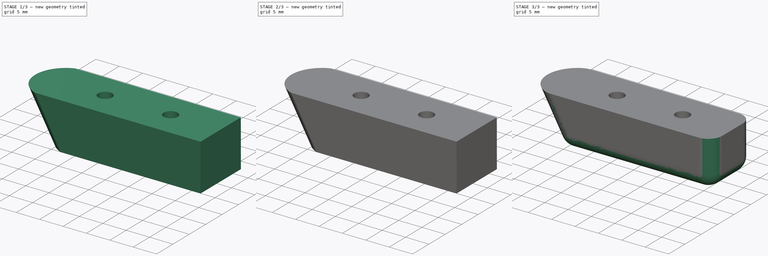
[diagram: build sequence overview — one tinted view per stage of 3, left to right]
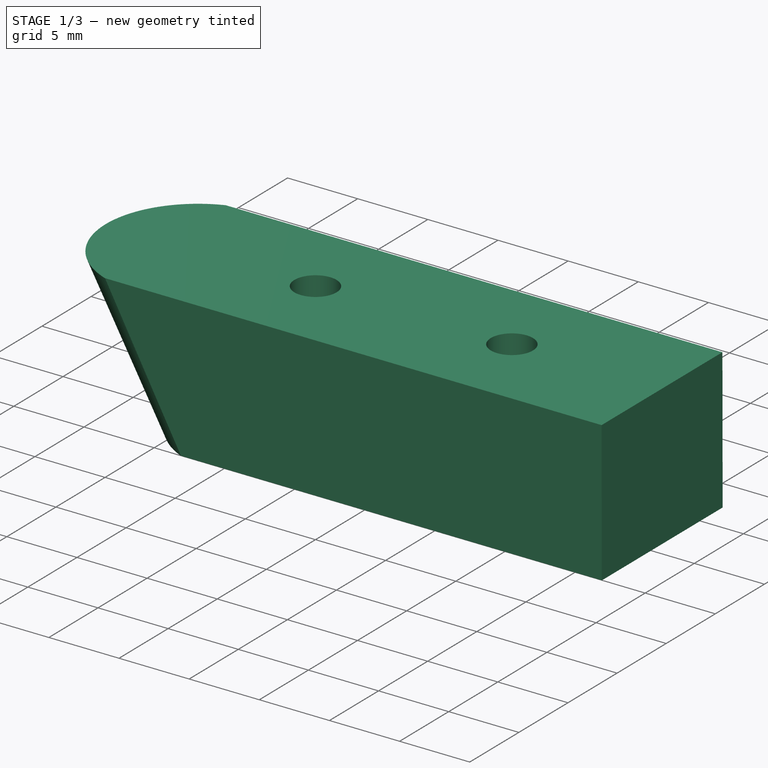
[diagram: stage 1 of 3 — iso view after this stage's code; geometry added in this stage tinted green]
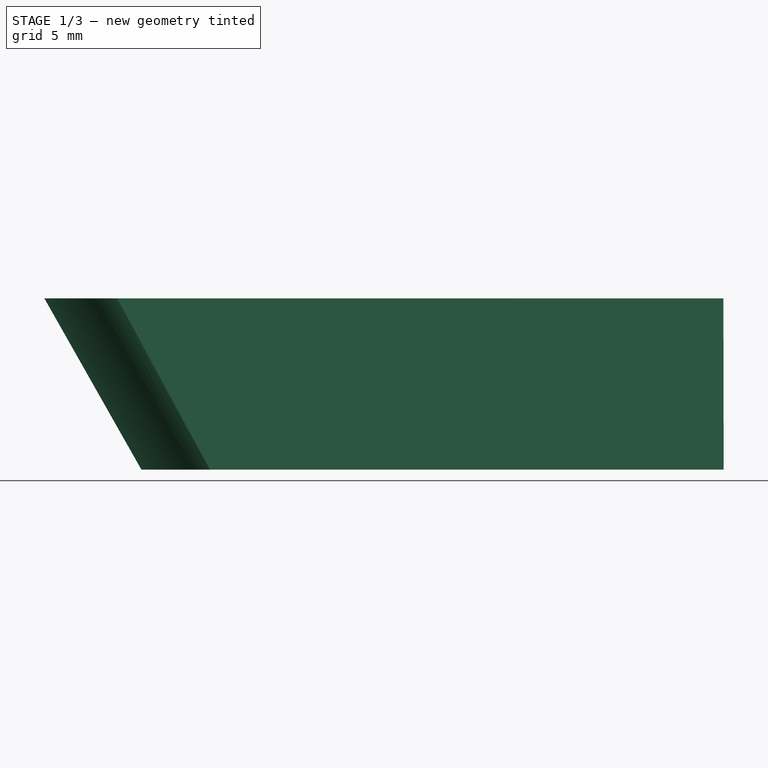
[diagram: stage 1 of 3 — front view after this stage's code; geometry added in this stage tinted green]
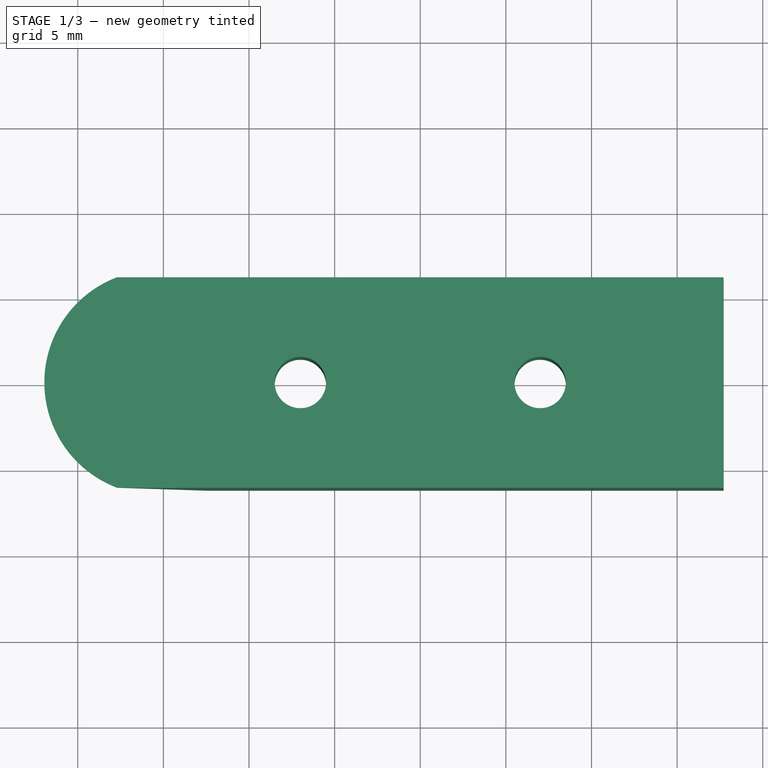
[diagram: stage 1 of 3 — top view after this stage's code; geometry added in this stage tinted green]
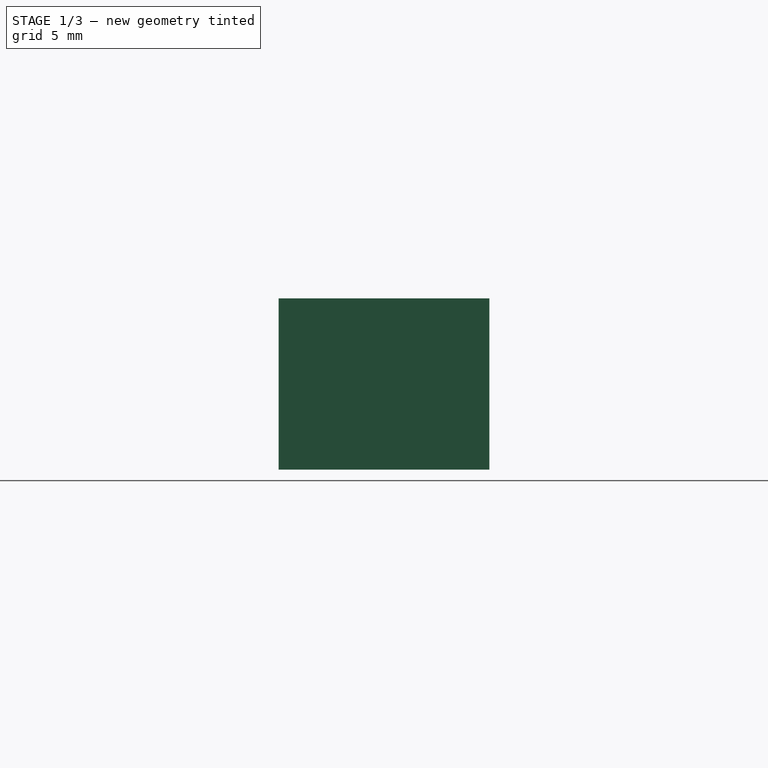
[diagram: stage 1 of 3 — right view after this stage's code; geometry added in this stage tinted green]
FCSTD DOCUMENT  (FreeCAD 0.16R6700 (Git))
Label: Magazine Bumper Pad 10mm
License: FreeArt
LicenseURL: http://artlibre.org/licence/lal
objects: Sketcher::SketchObject×4, PartDesign::Pocket×2, PartDesign::Fillet×2, Part::Loft×1
note: 11 computed .brp shape members not serialized (recipe doc carries the construction recipe); baked Part::Feature solids carry a one-line shape summary decoded from their .brp

FEATURE [Sketcher::SketchObject] Sketch
  sketch-geometry (6):
    g0: LineSegment StartX=-17.7 StartY=6.15 StartZ=0 EndX=17.7 EndY=6.15 EndZ=0
    g1: LineSegment StartX=17.7 StartY=6.15 StartZ=0 EndX=17.7 EndY=-6.15 EndZ=0
    g2: LineSegment StartX=17.7 StartY=-6.15 StartZ=0 EndX=-17.7 EndY=-6.15 EndZ=0
    g3: LineSegment [constr] StartX=-17.7 StartY=6.15 StartZ=0 EndX=-17.7 EndY=-6.15 EndZ=0
    g4: LineSegment [constr] StartX=17.7 StartY=0 StartZ=0 EndX=-21.95 EndY=0 EndZ=0
    g5: ArcOfCircle CenterX=-15.3753 CenterY=0 CenterZ=0 NormalX=0 NormalY=0 NormalZ=1 Radius=6.57471 StartAngle=1.9322 EndAngle=4.35099
  constraints (19):
    c: Horizontal(g0)
    c: Coincident(g0,g1)
    c: Vertical(g1)
    c: Coincident(g1,g2)
    c: Horizontal(g2)
    c: DistanceY(g1,g1) = 12.3
    c: Equal(g0,g2)
    c: DistanceX(g0,g0) = 35.4
    c: Coincident(g3,g0)
    c: Coincident(g3,g2)
    c: Symmetric(g0,g1,g-1)
    c: Symmetric(g0,g0,g-2)
    c: PointOnObject(g4,g1)
    c: Horizontal(g4)
    c: PointOnObject(g4,g-1)
    c: Distance(g4) = 39.65
    c: Coincident(g5,g0)
    c: Coincident(g5,g2)
    c: PointOnObject(g4,g5)
FEATURE [Sketcher::SketchObject] Sketch001
  Placement = pos=(0,0,-10) rot=(0,0,1;0rad)
  sketch-geometry (6):
    g0: LineSegment StartX=-12.2848 StartY=-6.15 StartZ=0 EndX=17.7152 EndY=-6.15 EndZ=0
    g1: LineSegment StartX=17.7152 StartY=-6.15 StartZ=0 EndX=17.7152 EndY=6.15 EndZ=0
    g2: LineSegment StartX=17.7152 StartY=6.15 StartZ=0 EndX=-12.2848 EndY=6.15 EndZ=0
    g3: GeomPoint [constr] X=17.7152 Y=0 Z=0
    g4: LineSegment [constr] StartX=-16.2848 StartY=0 StartZ=0 EndX=17.7152 EndY=0 EndZ=0
    g5: ArcOfCircle CenterX=-9.55699 CenterY=0 CenterZ=0 NormalX=0 NormalY=0 NormalZ=1 Radius=6.72781 StartAngle=1.98827 EndAngle=4.29491
  constraints (18):
    c: Horizontal(g0)
    c: Coincident(g0,g1)
    c: Vertical(g1)
    c: Coincident(g1,g2)
    c: Horizontal(g2)
    c: Symmetric(g1,g0,g-1)
    c: PointOnObject(g3,g-1)
    c: DistanceX(g-2,g3) = 17.7152
    c: PointOnObject(g3,g1)
    c: DistanceY(g1,g1) = 12.3
    c: Equal(g0,g2)
    c: DistanceX(g0,g0) = 30
    c: PointOnObject(g4,g-1)
    c: Coincident(g4,g3)
    c: DistanceX(g4,g4) = 34
    c: Coincident(g5,g0)
    c: Coincident(g5,g2)
    c: PointOnObject(g4,g5)
FEATURE [Part::Loft] Loft  label="Solido"
  Closed = false
  Ruled = true
  Sections = -> [Sketch,Sketch001]
  Solid = true
FEATURE [Sketcher::SketchObject] Sketch002
  Placement = pos=(0,0,-10) rot=(1,0,0;3.14159rad)
  Support = -> Loft [Face6]
  sketch-geometry (2):
    g0: Circle CenterX=-7 CenterY=0 CenterZ=0 NormalX=0 NormalY=0 NormalZ=1 Radius=1.5
    g1: Circle CenterX=7 CenterY=0 CenterZ=0 NormalX=0 NormalY=0 NormalZ=1 Radius=1.5
  constraints (6):
    c: PointOnObject(g0,g-1)
    c: PointOnObject(g1,g-1)
    c: Radius(g0) = 1.5
    c: Radius(g1) = 1.5
    c: Symmetric(g0,g1,g-2)
    c: DistanceX(g-1,g1) = 7
FEATURE [PartDesign::Pocket] Pocket  label="Furos Parafusos"
  Length = 5
  Sketch = -> Sketch002
  Type = 1
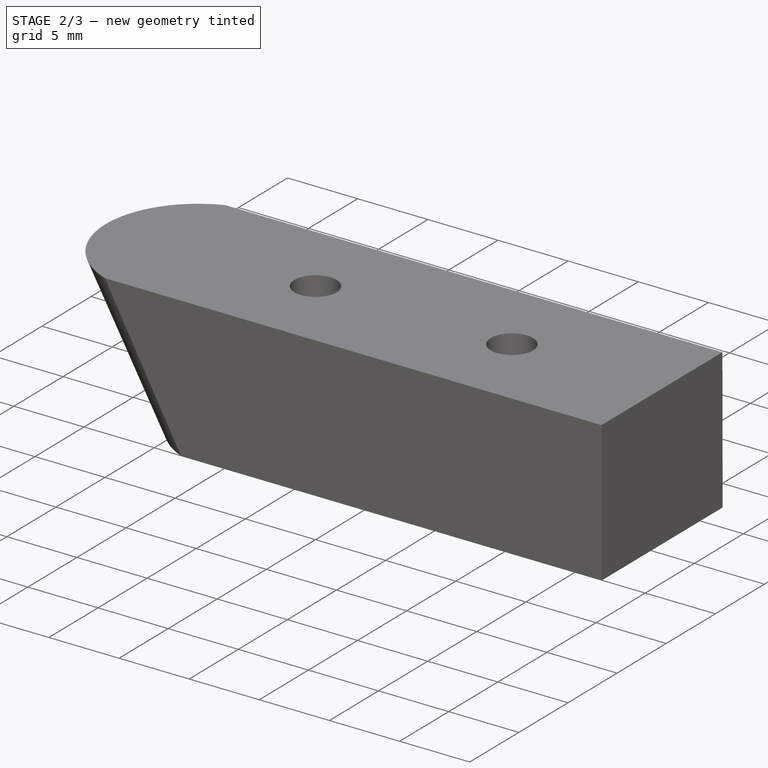
[diagram: stage 2 of 3 — iso view after this stage's code; geometry added in this stage tinted green]
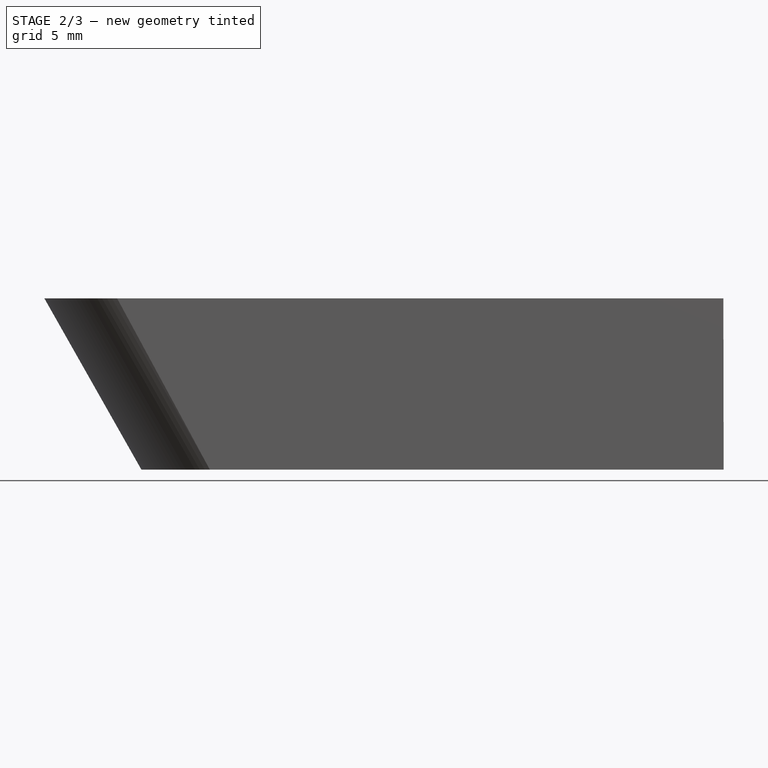
[diagram: stage 2 of 3 — front view after this stage's code; geometry added in this stage tinted green]
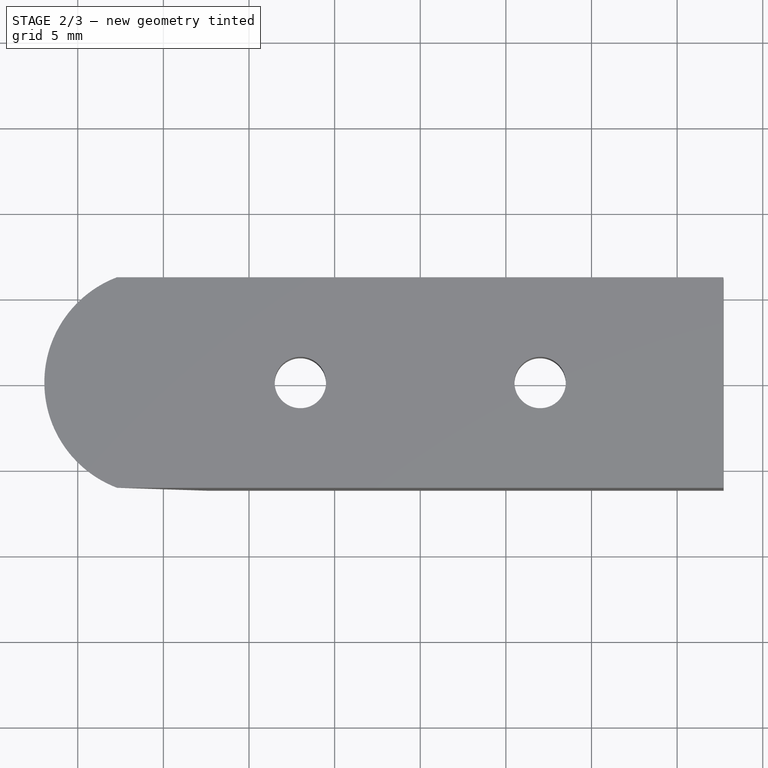
[diagram: stage 2 of 3 — top view after this stage's code; geometry added in this stage tinted green]
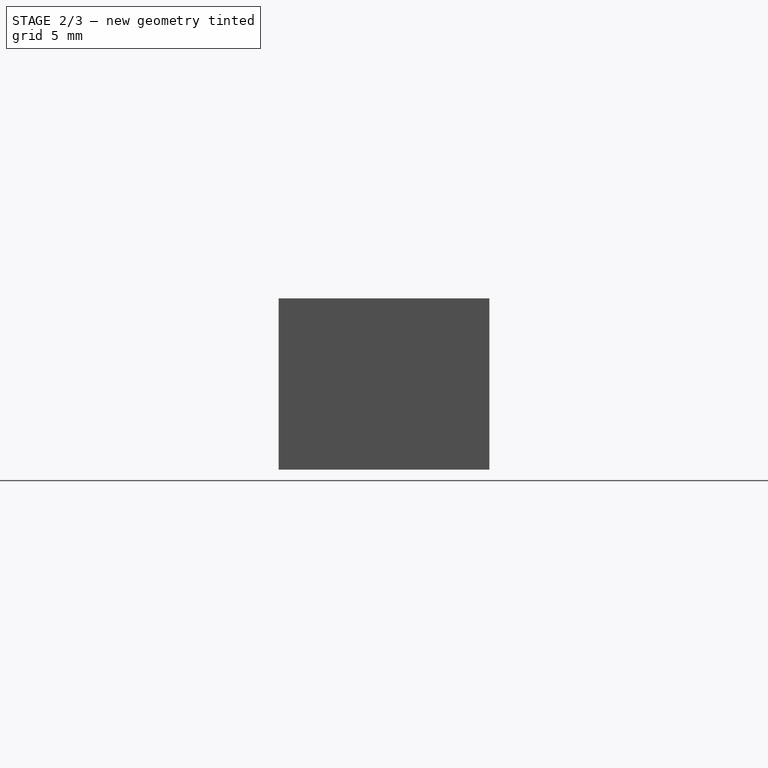
[diagram: stage 2 of 3 — right view after this stage's code; geometry added in this stage tinted green]
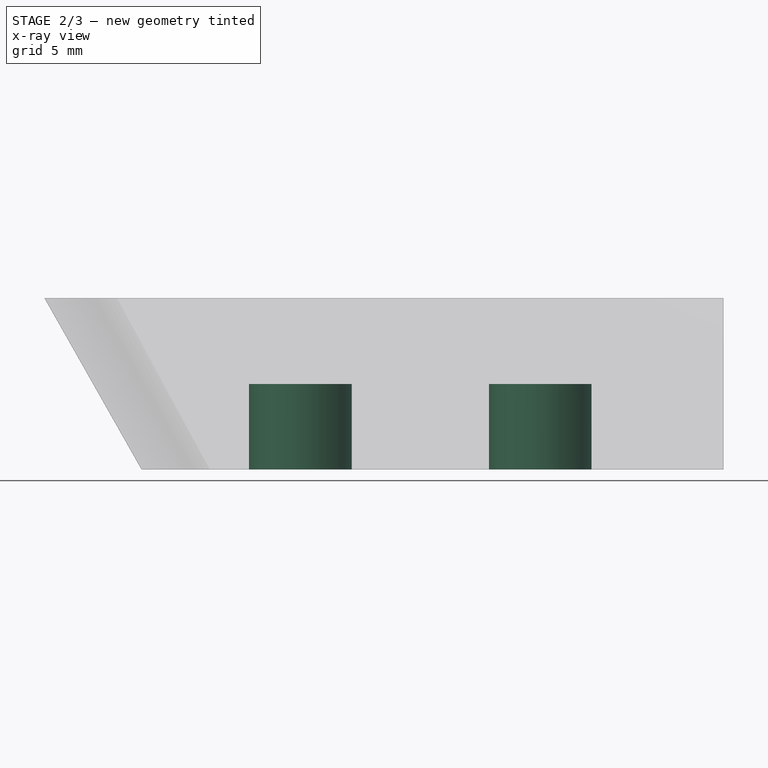
[diagram: stage 2 of 3 — x-ray composite at the front view; earlier geometry ghosted, this stage's added geometry solid]
FEATURE [Sketcher::SketchObject] Sketch003
  Placement = pos=(0,0,-10) rot=(1,0,0;3.14159rad)
  Support = -> Pocket [Face4]
  sketch-geometry (2):
    g0: Circle CenterX=7 CenterY=0 CenterZ=0 NormalX=0 NormalY=0 NormalZ=1 Radius=3
    g1: Circle CenterX=-7 CenterY=0 CenterZ=0 NormalX=0 NormalY=0 NormalZ=1 Radius=3
  constraints (5):
    c: PointOnObject(g1,g-1)
    c: Symmetric(g1,g0,g-2)
    c: DistanceX(g-1,g0) = 7
    c: Radius(g1) = 3
    c: Radius(g0) = 3
FEATURE [PartDesign::Pocket] Pocket001  label="Rebaixo Furos"
  Length = 5
  Sketch = -> Sketch003
  Type = 0
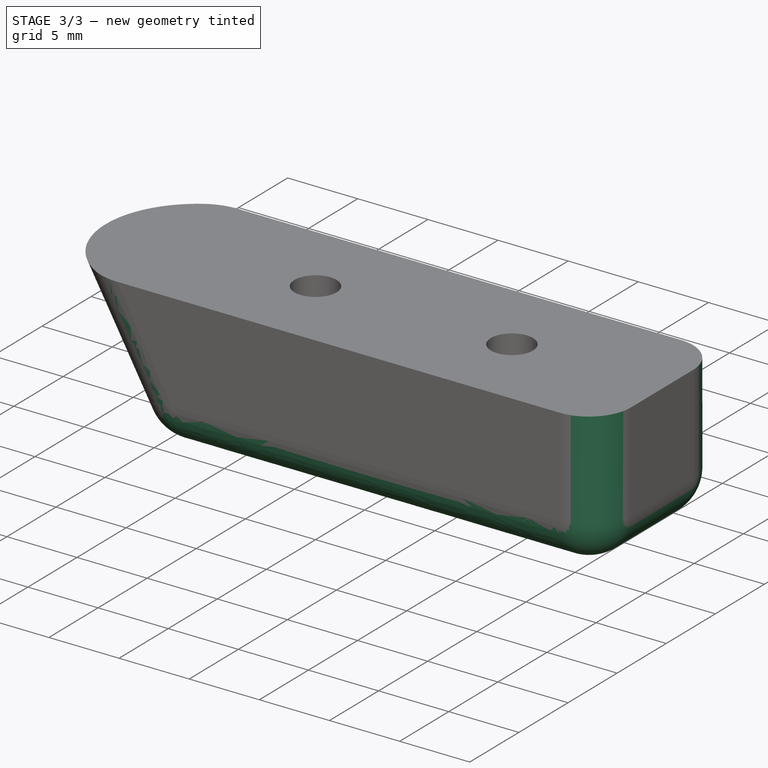
[diagram: stage 3 of 3 — iso view after this stage's code; geometry added in this stage tinted green]
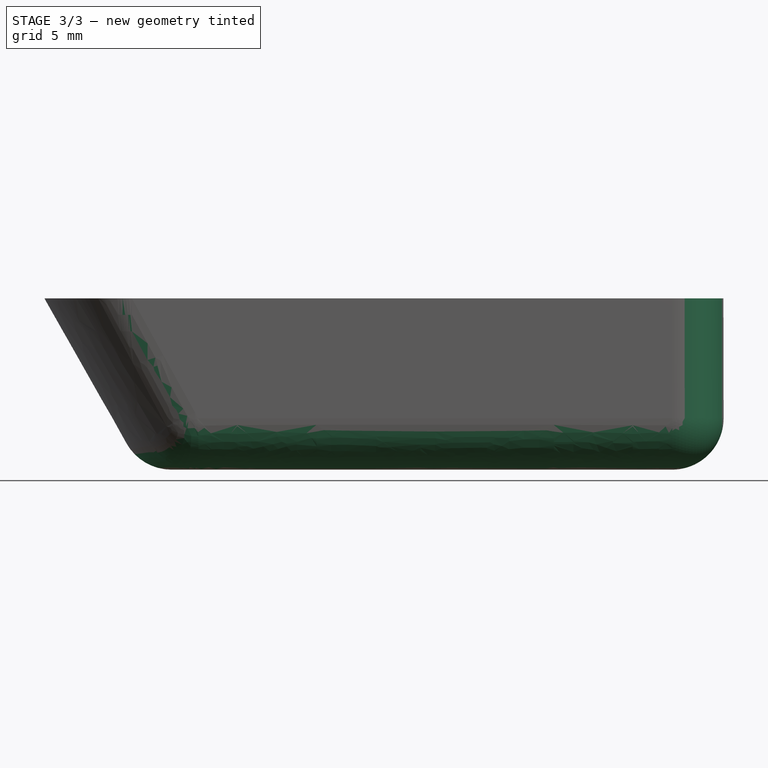
[diagram: stage 3 of 3 — front view after this stage's code; geometry added in this stage tinted green]
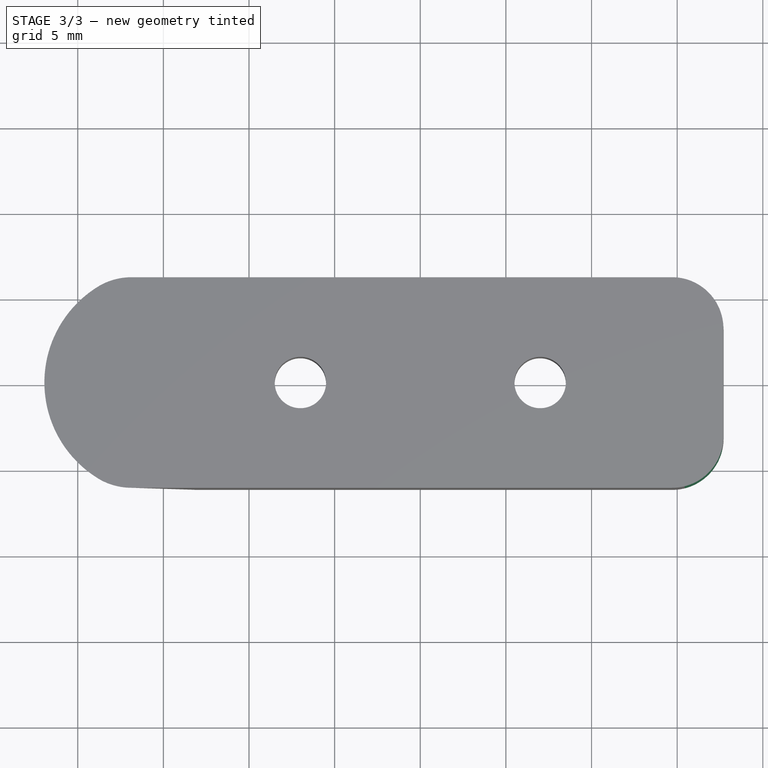
[diagram: stage 3 of 3 — top view after this stage's code; geometry added in this stage tinted green]
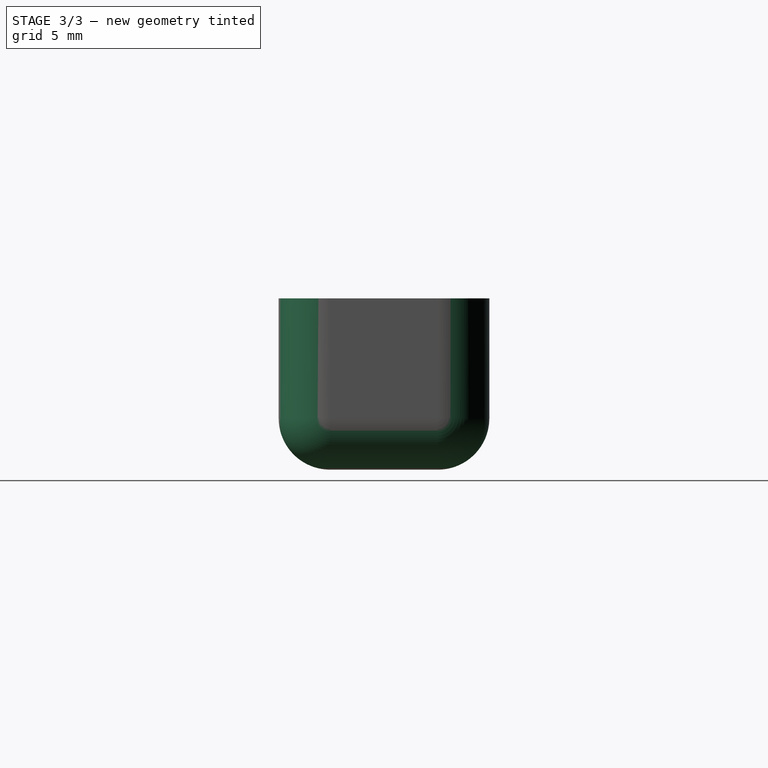
[diagram: stage 3 of 3 — right view after this stage's code; geometry added in this stage tinted green]
FEATURE [PartDesign::Fillet] Fillet  label="Chanfros Laterais"
  Base = -> Pocket001 [Edge13,Edge3,Edge11,Edge2,Edge10]
  Radius = 3
FEATURE [PartDesign::Fillet] Fillet001  label="Chanfro Frontal"
  Base = -> Fillet [Edge3]
  Radius = 3
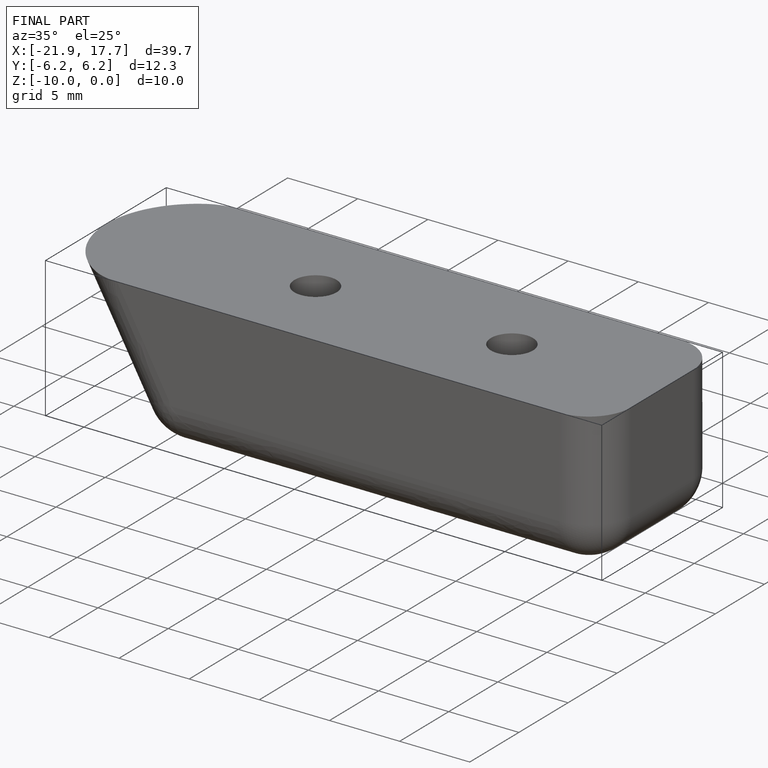
[diagram: finished part — iso view with bounding-box wireframe]
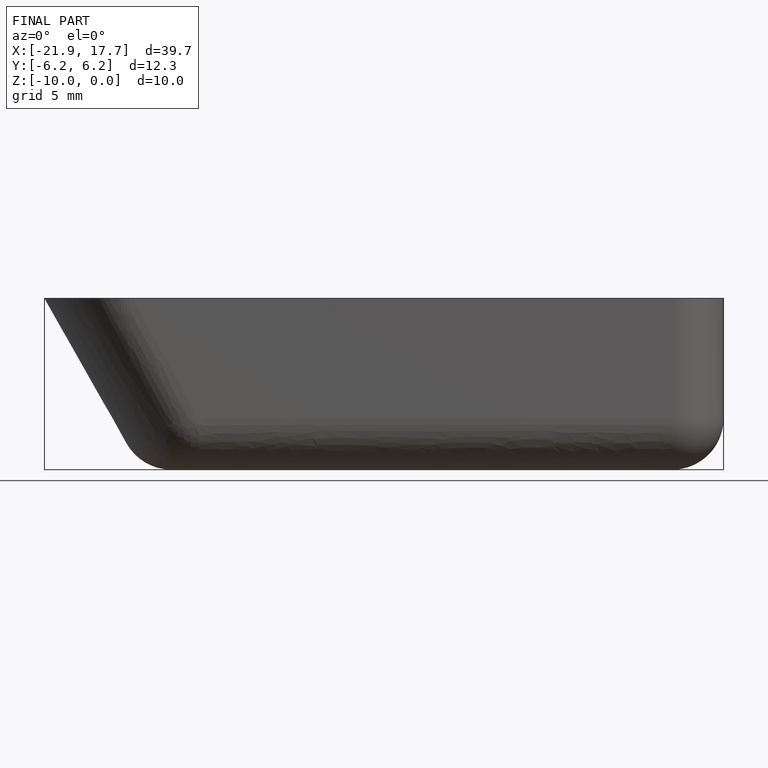
[diagram: finished part — front view with bounding-box wireframe]
